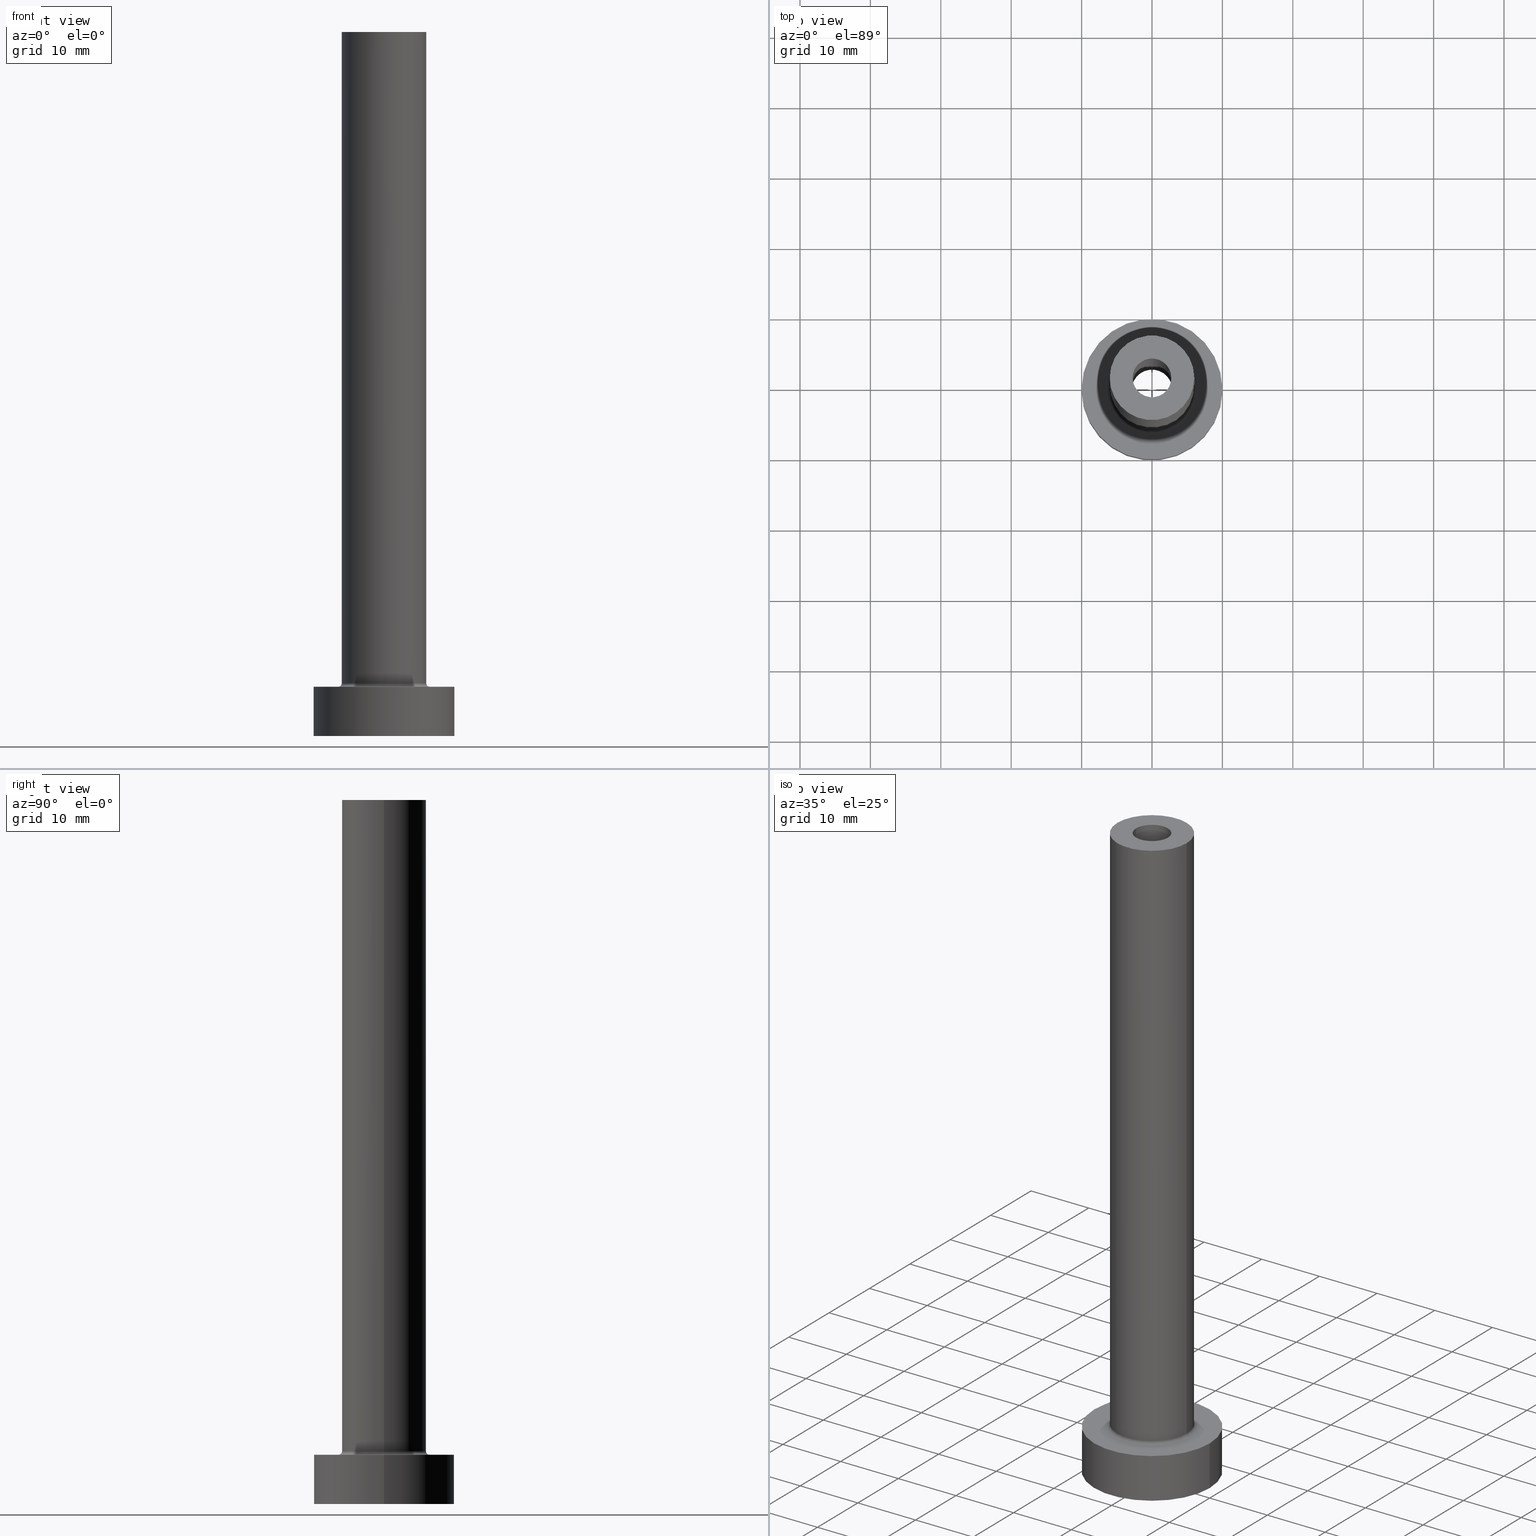
[diagram: canonical four-view strip — front | top / right | iso, engineering-drawing reading convention]
A machine part, canonical four-view strip (front | top / right | iso — engineering-drawing reading convention). The complete STEP part file that produces these views, byte-faithful:
ISO-10303-21;
HEADER;
FILE_DESCRIPTION (( 'STEP AP203' ),
    '1' );
FILE_NAME ('efe8.STEP',
    '2023-02-13T15:56:36',
    ( '' ),
    ( '' ),
    'SwSTEP 2.0',
    'SolidWorks 2019',
    '' );
FILE_SCHEMA (( 'CONFIG_CONTROL_DESIGN' ));
ENDSEC;

DATA;
#1 = CARTESIAN_POINT ( 'NONE',  ( 0.000000000000000000, 0.000000000000000000, 55.00000000000000711 ) ) ;
#2 = PLANE ( 'NONE',  #356 ) ;
#3 = CARTESIAN_POINT ( 'NONE',  ( 0.000000000000000000, 0.000000000000000000, 100.0000000000000000 ) ) ;
#4 = DATE_AND_TIME ( #398, #202 ) ;
#5 = ORIENTED_EDGE ( 'NONE', *, *, #101, .T. ) ;
#6 = ORIENTED_EDGE ( 'NONE', *, *, #301, .T. ) ;
#7 = VECTOR ( 'NONE', #272, 1000.000000000000000 ) ;
#8 = ADVANCED_FACE ( 'NONE', ( #261 ), #229, .F. ) ;
#9 = DIRECTION ( 'NONE',  ( -1.000000000000000000, 0.000000000000000000, 0.000000000000000000 ) ) ;
#10 = CARTESIAN_POINT ( 'NONE',  ( -10.00000000000000000, 0.000000000000000000, 7.000000000000000000 ) ) ;
#11 = VERTEX_POINT ( 'NONE', #50 ) ;
#12 = PRODUCT_DEFINITION_SHAPE ( 'NONE', 'NONE',  #78 ) ;
#13 = CARTESIAN_POINT ( 'NONE',  ( 0.000000000000000000, 0.000000000000000000, 100.0000000000000000 ) ) ;
#14 = EDGE_LOOP ( 'NONE', ( #193, #454 ) ) ;
#15 = ORIENTED_EDGE ( 'NONE', *, *, #167, .T. ) ;
#16 = AXIS2_PLACEMENT_3D ( 'NONE', #223, #195, #120 ) ;
#17 = CC_DESIGN_PERSON_AND_ORGANIZATION_ASSIGNMENT ( #378, #307, ( #379 ) ) ;
#18 = DIRECTION ( 'NONE',  ( -0.000000000000000000, -0.000000000000000000, -1.000000000000000000 ) ) ;
#19 = CARTESIAN_POINT ( 'NONE',  ( 0.000000000000000000, 0.000000000000000000, 7.500000000000007105 ) ) ;
#20 = VERTEX_POINT ( 'NONE', #259 ) ;
#21 = EDGE_CURVE ( 'NONE', #376, #20, #47, .T. ) ;
#22 = PERSON_AND_ORGANIZATION_ROLE ( 'design_supplier' ) ;
#23 = FACE_OUTER_BOUND ( 'NONE', #333, .T. ) ;
#24 = CARTESIAN_POINT ( 'NONE',  ( 0.000000000000000000, 0.000000000000000000, 7.500000000000007105 ) ) ;
#25 = FACE_OUTER_BOUND ( 'NONE', #297, .T. ) ;
#26 = ORIENTED_EDGE ( 'NONE', *, *, #151, .F. ) ;
#27 = CIRCLE ( 'NONE', #248, 2.899999999999999911 ) ;
#28 = AXIS2_PLACEMENT_3D ( 'NONE', #150, #451, #363 ) ;
#29 = DIRECTION ( 'NONE',  ( 0.000000000000000000, 0.000000000000000000, -1.000000000000000000 ) ) ;
#30 = ORIENTED_EDGE ( 'NONE', *, *, #444, .T. ) ;
#31 = CYLINDRICAL_SURFACE ( 'NONE', #143, 2.899999999999999911 ) ;
#32 = VECTOR ( 'NONE', #119, 1000.000000000000000 ) ;
#33 = DIRECTION ( 'NONE',  ( 0.000000000000000000, 0.000000000000000000, -1.000000000000000000 ) ) ;
#34 = CIRCLE ( 'NONE', #317, 0.5000000000000004441 ) ;
#35 = DIRECTION ( 'NONE',  ( 1.224646799147353207E-16, 1.000000000000000000, -0.000000000000000000 ) ) ;
#36 = ADVANCED_FACE ( 'NONE', ( #206 ), #263, .T. ) ;
#37 = CARTESIAN_POINT ( 'NONE',  ( 0.000000000000000000, 0.000000000000000000, 7.000000000000000000 ) ) ;
#38 = EDGE_CURVE ( 'NONE', #408, #48, #104, .T. ) ;
#39 = CIRCLE ( 'NONE', #396, 2.750000000000000000 ) ;
#40 = ORIENTED_EDGE ( 'NONE', *, *, #167, .F. ) ;
#41 = CARTESIAN_POINT ( 'NONE',  ( 6.500000000000000888, 0.000000000000000000, 7.500000000000007105 ) ) ;
#42 = ORIENTED_EDGE ( 'NONE', *, *, #57, .F. ) ;
#43 = LINE ( 'NONE', #118, #180 ) ;
#44 = AXIS2_PLACEMENT_3D ( 'NONE', #218, #355, #246 ) ;
#45 = CC_DESIGN_DATE_AND_TIME_ASSIGNMENT ( #4, #439, ( #78 ) ) ;
#46 = ORIENTED_EDGE ( 'NONE', *, *, #438, .F. ) ;
#47 = CIRCLE ( 'NONE', #249, 10.00000000000000000 ) ;
#48 = VERTEX_POINT ( 'NONE', #337 ) ;
#49 = ORIENTED_EDGE ( 'NONE', *, *, #213, .T. ) ;
#50 = CARTESIAN_POINT ( 'NONE',  ( 6.000000000000000888, 7.347880794884119736E-16, 7.500000000000007105 ) ) ;
#51 = CIRCLE ( 'NONE', #310, 2.750000000000000000 ) ;
#52 = PERSON_AND_ORGANIZATION ( #182, #400 ) ;
#53 = FACE_OUTER_BOUND ( 'NONE', #328, .T. ) ;
#54 = CARTESIAN_POINT ( 'NONE',  ( 0.000000000000000000, 0.000000000000000000, 7.500000000000007105 ) ) ;
#55 = SECURITY_CLASSIFICATION_LEVEL ( 'unclassified' ) ;
#56 = CYLINDRICAL_SURFACE ( 'NONE', #268, 2.750000000000000000 ) ;
#57 = EDGE_CURVE ( 'NONE', #448, #155, #436, .T. ) ;
#58 = PRODUCT_RELATED_PRODUCT_CATEGORY ( 'detail', '', ( #74 ) ) ;
#59 = CARTESIAN_POINT ( 'NONE',  ( -6.500000000000000888, 7.960204194457796463E-16, 7.500000000000007105 ) ) ;
#60 = ORIENTED_EDGE ( 'NONE', *, *, #345, .F. ) ;
#61 = CIRCLE ( 'NONE', #44, 2.750000000000000000 ) ;
#62 = APPROVAL_PERSON_ORGANIZATION ( #327, #226, #135 ) ;
#63 = DIRECTION ( 'NONE',  ( -1.000000000000000000, 0.000000000000000000, 0.000000000000000000 ) ) ;
#64 = DIRECTION ( 'NONE',  ( 0.000000000000000000, 0.000000000000000000, 1.000000000000000000 ) ) ;
#65 = CARTESIAN_POINT ( 'NONE',  ( -2.899999999999999911, 0.000000000000000000, 0.000000000000000000 ) ) ;
#66 = AXIS2_PLACEMENT_3D ( 'NONE', #113, #383, #459 ) ;
#67 = PLANE ( 'NONE',  #279 ) ;
#68 = AXIS2_PLACEMENT_3D ( 'NONE', #240, #312, #92 ) ;
#69 = CIRCLE ( 'NONE', #357, 6.000000000000000888 ) ;
#70 = EDGE_CURVE ( 'NONE', #11, #199, #111, .T. ) ;
#71 = DIRECTION ( 'NONE',  ( -0.000000000000000000, -0.000000000000000000, -1.000000000000000000 ) ) ;
#72 =( NAMED_UNIT ( * ) PLANE_ANGLE_UNIT ( ) SI_UNIT ( $, .RADIAN. ) );
#73 = VERTEX_POINT ( 'NONE', #225 ) ;
#74 = PRODUCT ( 'efe8', 'efe8', '', ( #224 ) ) ;
#75 = ORIENTED_EDGE ( 'NONE', *, *, #375, .F. ) ;
#76 = EDGE_LOOP ( 'NONE', ( #371, #60 ) ) ;
#77 = DIRECTION ( 'NONE',  ( 1.000000000000000000, 0.000000000000000000, 0.000000000000000000 ) ) ;
#78 = PRODUCT_DEFINITION ( 'NEZN�M�', '', #379, #231 ) ;
#79 = CARTESIAN_POINT ( 'NONE',  ( 0.000000000000000000, 0.000000000000000000, 0.000000000000000000 ) ) ;
#80 = ORIENTED_EDGE ( 'NONE', *, *, #354, .F. ) ;
#81 = DIRECTION ( 'NONE',  ( 0.000000000000000000, 0.000000000000000000, 1.000000000000000000 ) ) ;
#82 = EDGE_CURVE ( 'NONE', #185, #376, #43, .T. ) ;
#83 = CIRCLE ( 'NONE', #430, 6.000000000000000888 ) ;
#84 = EDGE_LOOP ( 'NONE', ( #196, #360 ) ) ;
#85 = LINE ( 'NONE', #233, #288 ) ;
#86 = CC_DESIGN_SECURITY_CLASSIFICATION ( #178, ( #379 ) ) ;
#87 = PERSON_AND_ORGANIZATION_ROLE ( 'classification_officer' ) ;
#88 = CARTESIAN_POINT ( 'NONE',  ( 0.000000000000000000, 0.000000000000000000, 7.000000000000000000 ) ) ;
#89 = DIRECTION ( 'NONE',  ( 0.000000000000000000, 0.000000000000000000, 1.000000000000000000 ) ) ;
#90 = DATE_AND_TIME ( #207, #183 ) ;
#91 = DIRECTION ( 'NONE',  ( 1.000000000000000000, 0.000000000000000000, -0.000000000000000000 ) ) ;
#92 = DIRECTION ( 'NONE',  ( 1.000000000000000000, 0.000000000000000000, 0.000000000000000000 ) ) ;
#93 = ADVANCED_BREP_SHAPE_REPRESENTATION ( 'efe8', ( #449, #256 ), #107 ) ;
#94 = FACE_OUTER_BOUND ( 'NONE', #367, .T. ) ;
#95 = DIRECTION ( 'NONE',  ( 1.000000000000000000, 0.000000000000000000, 0.000000000000000000 ) ) ;
#96 = DIRECTION ( 'NONE',  ( -1.000000000000000000, 0.000000000000000000, 0.000000000000000000 ) ) ;
#97 = ORIENTED_EDGE ( 'NONE', *, *, #70, .F. ) ;
#98 = DIRECTION ( 'NONE',  ( 1.000000000000000000, 0.000000000000000000, -0.000000000000000000 ) ) ;
#99 = CYLINDRICAL_SURFACE ( 'NONE', #417, 6.000000000000000888 ) ;
#100 = CIRCLE ( 'NONE', #316, 2.750000000000000000 ) ;
#101 = EDGE_CURVE ( 'NONE', #325, #359, #230, .T. ) ;
#102 = APPROVAL_DATE_TIME ( #253, #295 ) ;
#103 = VERTEX_POINT ( 'NONE', #192 ) ;
#104 = CIRCLE ( 'NONE', #173, 6.500000000000000888 ) ;
#105 = APPROVAL_ROLE ( '' ) ;
#106 = AXIS2_PLACEMENT_3D ( 'NONE', #59, #35, #210 ) ;
#107 =( GEOMETRIC_REPRESENTATION_CONTEXT ( 3 ) GLOBAL_UNCERTAINTY_ASSIGNED_CONTEXT ( ( #161 ) ) GLOBAL_UNIT_ASSIGNED_CONTEXT ( ( #245, #72, #352 ) ) REPRESENTATION_CONTEXT ( 'NONE', 'WORKASPACE' ) );
#108 = ORIENTED_EDGE ( 'NONE', *, *, #453, .T. ) ;
#109 = ORIENTED_EDGE ( 'NONE', *, *, #309, .T. ) ;
#110 = CARTESIAN_POINT ( 'NONE',  ( 0.000000000000000000, 0.000000000000000000, 7.000000000000000000 ) ) ;
#111 = CIRCLE ( 'NONE', #384, 6.000000000000000888 ) ;
#112 = CARTESIAN_POINT ( 'NONE',  ( 0.000000000000000000, 0.000000000000000000, 0.000000000000000000 ) ) ;
#113 = CARTESIAN_POINT ( 'NONE',  ( 0.000000000000000000, 0.000000000000000000, 55.00000000000000711 ) ) ;
#114 = ORIENTED_EDGE ( 'NONE', *, *, #101, .F. ) ;
#115 = DIRECTION ( 'NONE',  ( 1.000000000000000000, 0.000000000000000000, 0.000000000000000000 ) ) ;
#116 = DIRECTION ( 'NONE',  ( 1.000000000000000000, 0.000000000000000000, 0.000000000000000000 ) ) ;
#117 = TOROIDAL_SURFACE ( 'NONE', #399, 6.500000000000000888, 0.5000000000000000000 ) ;
#118 = CARTESIAN_POINT ( 'NONE',  ( 10.00000000000000000, 1.224646799147353256E-15, 7.000000000000000000 ) ) ;
#119 = DIRECTION ( 'NONE',  ( 0.000000000000000000, 0.000000000000000000, -1.000000000000000000 ) ) ;
#120 = DIRECTION ( 'NONE',  ( 1.000000000000000000, 0.000000000000000000, 0.000000000000000000 ) ) ;
#121 = COORDINATED_UNIVERSAL_TIME_OFFSET ( 1, 0, .AHEAD. ) ;
#122 = DIRECTION ( 'NONE',  ( -1.000000000000000000, 0.000000000000000000, 0.000000000000000000 ) ) ;
#123 = AXIS2_PLACEMENT_3D ( 'NONE', #390, #29, #63 ) ;
#124 = CC_DESIGN_APPROVAL ( #244, ( #178 ) ) ;
#125 = CARTESIAN_POINT ( 'NONE',  ( 2.899999999999999911, 3.551475717527323832E-16, 0.000000000000000000 ) ) ;
#126 = CC_DESIGN_PERSON_AND_ORGANIZATION_ASSIGNMENT ( #140, #189, ( #78 ) ) ;
#127 = FACE_BOUND ( 'NONE', #76, .T. ) ;
#128 = CARTESIAN_POINT ( 'NONE',  ( -6.000000000000000888, 0.000000000000000000, 7.500000000000007105 ) ) ;
#129 = DIRECTION ( 'NONE',  ( 0.000000000000000000, 0.000000000000000000, -1.000000000000000000 ) ) ;
#130 = CARTESIAN_POINT ( 'NONE',  ( 0.000000000000000000, 0.000000000000000000, 100.0000000000000000 ) ) ;
#131 = VECTOR ( 'NONE', #236, 1000.000000000000000 ) ;
#132 = LINE ( 'NONE', #315, #131 ) ;
#133 = DIRECTION ( 'NONE',  ( -0.000000000000000000, -0.000000000000000000, -1.000000000000000000 ) ) ;
#134 = EDGE_CURVE ( 'NONE', #344, #11, #85, .T. ) ;
#135 = APPROVAL_ROLE ( '' ) ;
#136 = CC_DESIGN_DATE_AND_TIME_ASSIGNMENT ( #234, #273, ( #178 ) ) ;
#137 = CIRCLE ( 'NONE', #106, 0.5000000000000004441 ) ;
#138 = PERSON_AND_ORGANIZATION ( #182, #400 ) ;
#139 = CARTESIAN_POINT ( 'NONE',  ( 6.500000000000000888, 0.000000000000000000, 7.000000000000002665 ) ) ;
#140 = PERSON_AND_ORGANIZATION ( #182, #400 ) ;
#141 = EDGE_CURVE ( 'NONE', #199, #11, #83, .T. ) ;
#142 = CARTESIAN_POINT ( 'NONE',  ( 2.899999999999999911, 3.551475717527323832E-16, 63.20243866176396352 ) ) ;
#143 = AXIS2_PLACEMENT_3D ( 'NONE', #174, #278, #96 ) ;
#144 = LOCAL_TIME ( 16, 56, 36.00000000000000000, #221 ) ;
#145 = ORIENTED_EDGE ( 'NONE', *, *, #453, .F. ) ;
#146 = EDGE_LOOP ( 'NONE', ( #411, #393, #30, #157 ) ) ;
#147 = CARTESIAN_POINT ( 'NONE',  ( -10.00000000000000000, 0.000000000000000000, 7.000000000000000000 ) ) ;
#148 = VERTEX_POINT ( 'NONE', #296 ) ;
#149 = ORIENTED_EDGE ( 'NONE', *, *, #186, .T. ) ;
#150 = CARTESIAN_POINT ( 'NONE',  ( 0.000000000000000000, 0.000000000000000000, 0.000000000000000000 ) ) ;
#151 = EDGE_CURVE ( 'NONE', #73, #103, #350, .T. ) ;
#152 = CARTESIAN_POINT ( 'NONE',  ( 0.000000000000000000, 0.000000000000000000, 0.000000000000000000 ) ) ;
#153 = ORIENTED_EDGE ( 'NONE', *, *, #70, .T. ) ;
#154 = DIRECTION ( 'NONE',  ( 0.000000000000000000, 0.000000000000000000, 1.000000000000000000 ) ) ;
#155 = VERTEX_POINT ( 'NONE', #65 ) ;
#156 = CIRCLE ( 'NONE', #68, 10.00000000000000000 ) ;
#157 = ORIENTED_EDGE ( 'NONE', *, *, #141, .T. ) ;
#158 = LOCAL_TIME ( 16, 56, 36.00000000000000000, #435 ) ;
#159 = CC_DESIGN_PERSON_AND_ORGANIZATION_ASSIGNMENT ( #303, #22, ( #379 ) ) ;
#160 = ORIENTED_EDGE ( 'NONE', *, *, #438, .T. ) ;
#161 = UNCERTAINTY_MEASURE_WITH_UNIT (LENGTH_MEASURE( 1.000000000000000082E-05 ), #245, 'distance_accuracy_value', 'NONE');
#162 = AXIS2_PLACEMENT_3D ( 'NONE', #54, #298, #116 ) ;
#163 = PERSON_AND_ORGANIZATION ( #182, #400 ) ;
#164 = DIRECTION ( 'NONE',  ( -0.000000000000000000, -0.000000000000000000, -1.000000000000000000 ) ) ;
#165 = DIRECTION ( 'NONE',  ( 0.000000000000000000, 0.000000000000000000, 1.000000000000000000 ) ) ;
#166 = CALENDAR_DATE ( 2023, 13, 2 ) ;
#167 = EDGE_CURVE ( 'NONE', #271, #359, #100, .T. ) ;
#168 = CYLINDRICAL_SURFACE ( 'NONE', #389, 2.750000000000000000 ) ;
#169 = CIRCLE ( 'NONE', #432, 6.000000000000000888 ) ;
#170 = DIRECTION ( 'NONE',  ( 0.000000000000000000, 0.000000000000000000, -1.000000000000000000 ) ) ;
#171 = VERTEX_POINT ( 'NONE', #387 ) ;
#172 = DIRECTION ( 'NONE',  ( 0.000000000000000000, 0.000000000000000000, 1.000000000000000000 ) ) ;
#173 = AXIS2_PLACEMENT_3D ( 'NONE', #407, #340, #198 ) ;
#174 = CARTESIAN_POINT ( 'NONE',  ( 0.000000000000000000, 0.000000000000000000, 63.20243866176396352 ) ) ;
#175 = ADVANCED_FACE ( 'NONE', ( #25 ), #56, .F. ) ;
#176 = EDGE_LOOP ( 'NONE', ( #80, #329, #153, #228 ) ) ;
#177 = DIRECTION ( 'NONE',  ( 1.000000000000000000, 0.000000000000000000, -0.000000000000000000 ) ) ;
#178 = SECURITY_CLASSIFICATION ( '', '', #55 ) ;
#179 = DIRECTION ( 'NONE',  ( 1.000000000000000000, 0.000000000000000000, 0.000000000000000000 ) ) ;
#180 = VECTOR ( 'NONE', #412, 1000.000000000000000 ) ;
#181 = ORIENTED_EDGE ( 'NONE', *, *, #330, .T. ) ;
#182 = PERSON ( 'NEUR�EN�', 'NEUR�EN�', 'NEUR�EN�', ('NEUR�EN�'), ('NEUR�EN�'), ('NEUR�EN�') ) ;
#183 = LOCAL_TIME ( 16, 56, 36.00000000000000000, #121 ) ;
#184 = DIRECTION ( 'NONE',  ( 0.000000000000000000, -1.000000000000000000, 0.000000000000000000 ) ) ;
#185 = VERTEX_POINT ( 'NONE', #426 ) ;
#186 = EDGE_CURVE ( 'NONE', #20, #376, #156, .T. ) ;
#187 = ORIENTED_EDGE ( 'NONE', *, *, #82, .T. ) ;
#188 = FACE_OUTER_BOUND ( 'NONE', #14, .T. ) ;
#189 = PERSON_AND_ORGANIZATION_ROLE ( 'creator' ) ;
#190 = ORIENTED_EDGE ( 'NONE', *, *, #301, .F. ) ;
#191 = CALENDAR_DATE ( 2023, 13, 2 ) ;
#192 = CARTESIAN_POINT ( 'NONE',  ( 2.899999999999999911, 3.551475717527323832E-16, 55.00000000000000711 ) ) ;
#193 = ORIENTED_EDGE ( 'NONE', *, *, #186, .F. ) ;
#194 = EDGE_CURVE ( 'NONE', #199, #48, #137, .T. ) ;
#195 = DIRECTION ( 'NONE',  ( -0.000000000000000000, -0.000000000000000000, -1.000000000000000000 ) ) ;
#196 = ORIENTED_EDGE ( 'NONE', *, *, #38, .T. ) ;
#197 = EDGE_LOOP ( 'NONE', ( #254, #5, #40, #190 ) ) ;
#198 = DIRECTION ( 'NONE',  ( 1.000000000000000000, 0.000000000000000000, 0.000000000000000000 ) ) ;
#199 = VERTEX_POINT ( 'NONE', #128 ) ;
#200 = DIRECTION ( 'NONE',  ( 1.000000000000000000, 0.000000000000000000, 0.000000000000000000 ) ) ;
#201 = CARTESIAN_POINT ( 'NONE',  ( 0.000000000000000000, 0.000000000000000000, 100.0000000000000000 ) ) ;
#202 = LOCAL_TIME ( 16, 56, 36.00000000000000000, #290 ) ;
#203 = VECTOR ( 'NONE', #455, 1000.000000000000000 ) ;
#204 = DATE_AND_TIME ( #166, #144 ) ;
#205 = CARTESIAN_POINT ( 'NONE',  ( 2.750000000000000000, 3.367778697655220519E-16, 55.00000000000000711 ) ) ;
#206 = FACE_OUTER_BOUND ( 'NONE', #176, .T. ) ;
#207 = CALENDAR_DATE ( 2023, 13, 2 ) ;
#208 = DIRECTION ( 'NONE',  ( 1.000000000000000000, 0.000000000000000000, 0.000000000000000000 ) ) ;
#209 = DIRECTION ( 'NONE',  ( 1.000000000000000000, 0.000000000000000000, 0.000000000000000000 ) ) ;
#210 = DIRECTION ( 'NONE',  ( -1.000000000000000000, 1.224646799147351482E-16, 0.000000000000000000 ) ) ;
#211 = AXIS2_PLACEMENT_3D ( 'NONE', #37, #71, #9 ) ;
#212 = VECTOR ( 'NONE', #222, 1000.000000000000000 ) ;
#213 = EDGE_CURVE ( 'NONE', #395, #185, #262, .T. ) ;
#214 = FACE_OUTER_BOUND ( 'NONE', #251, .T. ) ;
#215 = EDGE_LOOP ( 'NONE', ( #26, #348 ) ) ;
#216 = CARTESIAN_POINT ( 'NONE',  ( 0.000000000000000000, 0.000000000000000000, 7.000000000000000000 ) ) ;
#217 = CARTESIAN_POINT ( 'NONE',  ( -2.750000000000000000, 0.000000000000000000, 55.00000000000000711 ) ) ;
#218 = CARTESIAN_POINT ( 'NONE',  ( 0.000000000000000000, 0.000000000000000000, 55.00000000000000711 ) ) ;
#219 = EDGE_CURVE ( 'NONE', #103, #73, #27, .T. ) ;
#220 = APPLICATION_PROTOCOL_DEFINITION ( 'international standard', 'config_control_design', 1994, #402 ) ;
#221 = COORDINATED_UNIVERSAL_TIME_OFFSET ( 1, 0, .AHEAD. ) ;
#222 = DIRECTION ( 'NONE',  ( -0.000000000000000000, -0.000000000000000000, -1.000000000000000000 ) ) ;
#223 = CARTESIAN_POINT ( 'NONE',  ( 0.000000000000000000, 0.000000000000000000, 0.000000000000000000 ) ) ;
#224 = MECHANICAL_CONTEXT ( 'NONE', #402, 'mechanical' ) ;
#225 = CARTESIAN_POINT ( 'NONE',  ( -2.899999999999999911, 0.000000000000000000, 55.00000000000000711 ) ) ;
#226 = APPROVAL ( #250, 'NEUR�EN�' ) ;
#227 = DIRECTION ( 'NONE',  ( -0.000000000000000000, -0.000000000000000000, -1.000000000000000000 ) ) ;
#228 = ORIENTED_EDGE ( 'NONE', *, *, #444, .F. ) ;
#229 = TOROIDAL_SURFACE ( 'NONE', #162, 6.500000000000000888, 0.5000000000000000000 ) ;
#230 = LINE ( 'NONE', #302, #32 ) ;
#231 = DESIGN_CONTEXT ( 'detailed design', #429, 'design' ) ;
#232 = ADVANCED_FACE ( 'NONE', ( #313 ), #168, .F. ) ;
#233 = CARTESIAN_POINT ( 'NONE',  ( 6.000000000000000888, 7.347880794884119736E-16, 100.0000000000000000 ) ) ;
#234 = DATE_AND_TIME ( #420, #434 ) ;
#235 = DIRECTION ( 'NONE',  ( 1.000000000000000000, 0.000000000000000000, 0.000000000000000000 ) ) ;
#236 = DIRECTION ( 'NONE',  ( 0.000000000000000000, 0.000000000000000000, -1.000000000000000000 ) ) ;
#237 = SHAPE_DEFINITION_REPRESENTATION ( #12, #93 ) ;
#238 = DIRECTION ( 'NONE',  ( 0.000000000000000000, 0.000000000000000000, 1.000000000000000000 ) ) ;
#239 = ADVANCED_FACE ( 'NONE', ( #127, #275 ), #2, .T. ) ;
#240 = CARTESIAN_POINT ( 'NONE',  ( 0.000000000000000000, 0.000000000000000000, 0.000000000000000000 ) ) ;
#241 = AXIS2_PLACEMENT_3D ( 'NONE', #216, #172, #91 ) ;
#242 = CARTESIAN_POINT ( 'NONE',  ( 0.000000000000000000, 0.000000000000000000, 7.500000000000007105 ) ) ;
#243 = ORIENTED_EDGE ( 'NONE', *, *, #213, .F. ) ;
#244 = APPROVAL ( #382, 'NEUR�EN�' ) ;
#245 =( LENGTH_UNIT ( ) NAMED_UNIT ( * ) SI_UNIT ( .MILLI., .METRE. ) );
#246 = DIRECTION ( 'NONE',  ( 1.000000000000000000, 0.000000000000000000, 0.000000000000000000 ) ) ;
#247 = ADVANCED_FACE ( 'NONE', ( #347 ), #117, .F. ) ;
#248 = AXIS2_PLACEMENT_3D ( 'NONE', #1, #349, #208 ) ;
#249 = AXIS2_PLACEMENT_3D ( 'NONE', #152, #300, #77 ) ;
#250 = APPROVAL_STATUS ( 'not_yet_approved' ) ;
#251 = EDGE_LOOP ( 'NONE', ( #388, #160, #437, #460 ) ) ;
#252 = ADVANCED_FACE ( 'NONE', ( #94 ), #394, .F. ) ;
#253 = DATE_AND_TIME ( #191, #158 ) ;
#254 = ORIENTED_EDGE ( 'NONE', *, *, #336, .T. ) ;
#255 = CARTESIAN_POINT ( 'NONE',  ( 10.00000000000000000, 1.224646799147353256E-15, 0.000000000000000000 ) ) ;
#256 = AXIS2_PLACEMENT_3D ( 'NONE', #112, #154, #200 ) ;
#257 = EDGE_LOOP ( 'NONE', ( #405, #97, #108, #447 ) ) ;
#258 = DIRECTION ( 'NONE',  ( -0.000000000000000000, -0.000000000000000000, -1.000000000000000000 ) ) ;
#259 = CARTESIAN_POINT ( 'NONE',  ( -10.00000000000000000, 0.000000000000000000, 0.000000000000000000 ) ) ;
#260 = ORIENTED_EDGE ( 'NONE', *, *, #141, .F. ) ;
#261 = FACE_OUTER_BOUND ( 'NONE', #440, .T. ) ;
#262 = CIRCLE ( 'NONE', #457, 10.00000000000000000 ) ;
#263 = CYLINDRICAL_SURFACE ( 'NONE', #404, 6.000000000000000888 ) ;
#264 = ADVANCED_FACE ( 'NONE', ( #214 ), #31, .F. ) ;
#265 = DIRECTION ( 'NONE',  ( 1.000000000000000000, 0.000000000000000000, 0.000000000000000000 ) ) ;
#266 = LINE ( 'NONE', #142, #7 ) ;
#267 = FACE_OUTER_BOUND ( 'NONE', #291, .T. ) ;
#268 = AXIS2_PLACEMENT_3D ( 'NONE', #130, #170, #122 ) ;
#269 = FACE_BOUND ( 'NONE', #361, .T. ) ;
#270 = CIRCLE ( 'NONE', #16, 2.899999999999999911 ) ;
#271 = VERTEX_POINT ( 'NONE', #217 ) ;
#272 = DIRECTION ( 'NONE',  ( 0.000000000000000000, 0.000000000000000000, -1.000000000000000000 ) ) ;
#273 = DATE_TIME_ROLE ( 'classification_date' ) ;
#274 = PLANE ( 'NONE',  #241 ) ;
#275 = FACE_OUTER_BOUND ( 'NONE', #374, .T. ) ;
#276 = CARTESIAN_POINT ( 'NONE',  ( 0.000000000000000000, 0.000000000000000000, 7.000000000000000000 ) ) ;
#277 = DIRECTION ( 'NONE',  ( 0.000000000000000000, 0.000000000000000000, 1.000000000000000000 ) ) ;
#278 = DIRECTION ( 'NONE',  ( 0.000000000000000000, 0.000000000000000000, -1.000000000000000000 ) ) ;
#279 = AXIS2_PLACEMENT_3D ( 'NONE', #419, #89, #177 ) ;
#280 = APPROVAL_PERSON_ORGANIZATION ( #163, #244, #452 ) ;
#281 = DIRECTION ( 'NONE',  ( -1.000000000000000000, 0.000000000000000000, 0.000000000000000000 ) ) ;
#282 = CYLINDRICAL_SURFACE ( 'NONE', #211, 10.00000000000000000 ) ;
#283 = CC_DESIGN_PERSON_AND_ORGANIZATION_ASSIGNMENT ( #397, #322, ( #74 ) ) ;
#284 = FACE_OUTER_BOUND ( 'NONE', #146, .T. ) ;
#285 = AXIS2_PLACEMENT_3D ( 'NONE', #88, #164, #342 ) ;
#286 = APPROVAL_STATUS ( 'not_yet_approved' ) ;
#287 = ADVANCED_FACE ( 'NONE', ( #269, #353 ), #67, .F. ) ;
#288 = VECTOR ( 'NONE', #18, 1000.000000000000000 ) ;
#289 = PLANE ( 'NONE',  #28 ) ;
#290 = COORDINATED_UNIVERSAL_TIME_OFFSET ( 1, 0, .AHEAD. ) ;
#291 = EDGE_LOOP ( 'NONE', ( #49, #293 ) ) ;
#292 = ORIENTED_EDGE ( 'NONE', *, *, #461, .T. ) ;
#293 = ORIENTED_EDGE ( 'NONE', *, *, #375, .T. ) ;
#294 = LINE ( 'NONE', #10, #212 ) ;
#295 = APPROVAL ( #286, 'NEUR�EN�' ) ;
#296 = CARTESIAN_POINT ( 'NONE',  ( -2.750000000000000000, 0.000000000000000000, 100.0000000000000000 ) ) ;
#297 = EDGE_LOOP ( 'NONE', ( #114, #335, #6, #381 ) ) ;
#298 = DIRECTION ( 'NONE',  ( 0.000000000000000000, 0.000000000000000000, 1.000000000000000000 ) ) ;
#299 = CIRCLE ( 'NONE', #362, 10.00000000000000000 ) ;
#300 = DIRECTION ( 'NONE',  ( 0.000000000000000000, 0.000000000000000000, 1.000000000000000000 ) ) ;
#301 = EDGE_CURVE ( 'NONE', #148, #271, #132, .T. ) ;
#302 = CARTESIAN_POINT ( 'NONE',  ( 2.750000000000000000, 3.367778697655220519E-16, 100.0000000000000000 ) ) ;
#303 = PERSON_AND_ORGANIZATION ( #182, #400 ) ;
#304 = CYLINDRICAL_SURFACE ( 'NONE', #285, 10.00000000000000000 ) ;
#305 = DIRECTION ( 'NONE',  ( 1.000000000000000000, 0.000000000000000000, 0.000000000000000000 ) ) ;
#306 = CARTESIAN_POINT ( 'NONE',  ( -6.000000000000000888, 0.000000000000000000, 100.0000000000000000 ) ) ;
#307 = PERSON_AND_ORGANIZATION_ROLE ( 'creator' ) ;
#308 = CARTESIAN_POINT ( 'NONE',  ( -2.899999999999999911, 0.000000000000000000, 63.20243866176396352 ) ) ;
#309 = EDGE_CURVE ( 'NONE', #359, #271, #61, .T. ) ;
#310 = AXIS2_PLACEMENT_3D ( 'NONE', #391, #64, #235 ) ;
#311 = DIRECTION ( 'NONE',  ( 0.000000000000000000, 0.000000000000000000, 1.000000000000000000 ) ) ;
#312 = DIRECTION ( 'NONE',  ( 0.000000000000000000, 0.000000000000000000, 1.000000000000000000 ) ) ;
#313 = FACE_OUTER_BOUND ( 'NONE', #197, .T. ) ;
#314 = DIRECTION ( 'NONE',  ( 1.000000000000000000, 0.000000000000000000, 0.000000000000000000 ) ) ;
#315 = CARTESIAN_POINT ( 'NONE',  ( -2.750000000000000000, 0.000000000000000000, 100.0000000000000000 ) ) ;
#316 = AXIS2_PLACEMENT_3D ( 'NONE', #319, #392, #421 ) ;
#317 = AXIS2_PLACEMENT_3D ( 'NONE', #41, #184, #326 ) ;
#318 = ADVANCED_FACE ( 'NONE', ( #284 ), #99, .T. ) ;
#319 = CARTESIAN_POINT ( 'NONE',  ( 0.000000000000000000, 0.000000000000000000, 55.00000000000000711 ) ) ;
#320 = ORIENTED_EDGE ( 'NONE', *, *, #354, .T. ) ;
#321 = ADVANCED_FACE ( 'NONE', ( #346, #267 ), #274, .T. ) ;
#322 = PERSON_AND_ORGANIZATION_ROLE ( 'design_owner' ) ;
#323 = ORIENTED_EDGE ( 'NONE', *, *, #409, .T. ) ;
#324 = FACE_BOUND ( 'NONE', #364, .T. ) ;
#325 = VERTEX_POINT ( 'NONE', #380 ) ;
#326 = DIRECTION ( 'NONE',  ( 0.000000000000000000, 0.000000000000000000, -1.000000000000000000 ) ) ;
#327 = PERSON_AND_ORGANIZATION ( #182, #400 ) ;
#328 = EDGE_LOOP ( 'NONE', ( #445, #243, #334, #149 ) ) ;
#329 = ORIENTED_EDGE ( 'NONE', *, *, #134, .T. ) ;
#330 = EDGE_CURVE ( 'NONE', #73, #155, #413, .T. ) ;
#331 = CIRCLE ( 'NONE', #372, 6.500000000000000888 ) ;
#332 = DIRECTION ( 'NONE',  ( -0.000000000000000000, -0.000000000000000000, -1.000000000000000000 ) ) ;
#333 = EDGE_LOOP ( 'NONE', ( #75, #187, #415, #406 ) ) ;
#334 = ORIENTED_EDGE ( 'NONE', *, *, #401, .T. ) ;
#335 = ORIENTED_EDGE ( 'NONE', *, *, #345, .T. ) ;
#336 = EDGE_CURVE ( 'NONE', #148, #325, #39, .T. ) ;
#337 = CARTESIAN_POINT ( 'NONE',  ( -6.500000000000000888, 7.960204194457796463E-16, 7.000000000000002665 ) ) ;
#338 = APPROVAL_DATE_TIME ( #204, #226 ) ;
#339 = DIRECTION ( 'NONE',  ( 0.000000000000000000, 0.000000000000000000, 1.000000000000000000 ) ) ;
#340 = DIRECTION ( 'NONE',  ( -0.000000000000000000, -0.000000000000000000, -1.000000000000000000 ) ) ;
#341 = AXIS2_PLACEMENT_3D ( 'NONE', #79, #332, #414 ) ;
#342 = DIRECTION ( 'NONE',  ( -1.000000000000000000, 0.000000000000000000, 0.000000000000000000 ) ) ;
#343 = DIRECTION ( 'NONE',  ( 0.000000000000000000, 0.000000000000000000, 1.000000000000000000 ) ) ;
#344 = VERTEX_POINT ( 'NONE', #425 ) ;
#345 = EDGE_CURVE ( 'NONE', #325, #148, #51, .T. ) ;
#346 = FACE_BOUND ( 'NONE', #84, .T. ) ;
#347 = FACE_OUTER_BOUND ( 'NONE', #257, .T. ) ;
#348 = ORIENTED_EDGE ( 'NONE', *, *, #219, .F. ) ;
#349 = DIRECTION ( 'NONE',  ( 0.000000000000000000, 0.000000000000000000, 1.000000000000000000 ) ) ;
#350 = CIRCLE ( 'NONE', #66, 2.899999999999999911 ) ;
#351 = CARTESIAN_POINT ( 'NONE',  ( 0.000000000000000000, 0.000000000000000000, 100.0000000000000000 ) ) ;
#352 =( NAMED_UNIT ( * ) SI_UNIT ( $, .STERADIAN. ) SOLID_ANGLE_UNIT ( ) );
#353 = FACE_OUTER_BOUND ( 'NONE', #215, .T. ) ;
#354 = EDGE_CURVE ( 'NONE', #344, #171, #169, .T. ) ;
#355 = DIRECTION ( 'NONE',  ( 0.000000000000000000, 0.000000000000000000, 1.000000000000000000 ) ) ;
#356 = AXIS2_PLACEMENT_3D ( 'NONE', #428, #238, #98 ) ;
#357 = AXIS2_PLACEMENT_3D ( 'NONE', #13, #311, #209 ) ;
#358 = ADVANCED_FACE ( 'NONE', ( #53 ), #304, .T. ) ;
#359 = VERTEX_POINT ( 'NONE', #205 ) ;
#360 = ORIENTED_EDGE ( 'NONE', *, *, #385, .T. ) ;
#361 = EDGE_LOOP ( 'NONE', ( #15, #109 ) ) ;
#362 = AXIS2_PLACEMENT_3D ( 'NONE', #442, #81, #115 ) ;
#363 = DIRECTION ( 'NONE',  ( 1.000000000000000000, 0.000000000000000000, -0.000000000000000000 ) ) ;
#364 = EDGE_LOOP ( 'NONE', ( #443, #42 ) ) ;
#365 = CLOSED_SHELL ( 'NONE', ( #232, #264, #8, #36, #366, #358, #321, #433, #318, #239, #247, #252, #287, #175 ) ) ;
#366 = ADVANCED_FACE ( 'NONE', ( #23 ), #282, .T. ) ;
#367 = EDGE_LOOP ( 'NONE', ( #46, #377, #181, #323 ) ) ;
#368 = DIRECTION ( 'NONE',  ( 1.000000000000000000, 0.000000000000000000, 0.000000000000000000 ) ) ;
#369 = APPLICATION_PROTOCOL_DEFINITION ( 'international standard', 'config_control_design', 1994, #429 ) ;
#370 = DIRECTION ( 'NONE',  ( -1.000000000000000000, 0.000000000000000000, 0.000000000000000000 ) ) ;
#371 = ORIENTED_EDGE ( 'NONE', *, *, #336, .F. ) ;
#372 = AXIS2_PLACEMENT_3D ( 'NONE', #110, #258, #368 ) ;
#373 = DIRECTION ( 'NONE',  ( 1.000000000000000000, 0.000000000000000000, 0.000000000000000000 ) ) ;
#374 = EDGE_LOOP ( 'NONE', ( #292, #320 ) ) ;
#375 = EDGE_CURVE ( 'NONE', #185, #395, #299, .T. ) ;
#376 = VERTEX_POINT ( 'NONE', #255 ) ;
#377 = ORIENTED_EDGE ( 'NONE', *, *, #219, .T. ) ;
#378 = PERSON_AND_ORGANIZATION ( #182, #400 ) ;
#379 = PRODUCT_DEFINITION_FORMATION_WITH_SPECIFIED_SOURCE ( 'LIBOVOLN�', '', #74, .NOT_KNOWN. ) ;
#380 = CARTESIAN_POINT ( 'NONE',  ( 2.750000000000000000, 3.367778697655220519E-16, 100.0000000000000000 ) ) ;
#381 = ORIENTED_EDGE ( 'NONE', *, *, #309, .F. ) ;
#382 = APPROVAL_STATUS ( 'not_yet_approved' ) ;
#383 = DIRECTION ( 'NONE',  ( 0.000000000000000000, 0.000000000000000000, 1.000000000000000000 ) ) ;
#384 = AXIS2_PLACEMENT_3D ( 'NONE', #19, #450, #373 ) ;
#385 = EDGE_CURVE ( 'NONE', #48, #408, #331, .T. ) ;
#386 = APPROVAL_DATE_TIME ( #90, #244 ) ;
#387 = CARTESIAN_POINT ( 'NONE',  ( -6.000000000000000888, 0.000000000000000000, 100.0000000000000000 ) ) ;
#388 = ORIENTED_EDGE ( 'NONE', *, *, #151, .T. ) ;
#389 = AXIS2_PLACEMENT_3D ( 'NONE', #458, #33, #281 ) ;
#390 = CARTESIAN_POINT ( 'NONE',  ( 0.000000000000000000, 0.000000000000000000, 63.20243866176396352 ) ) ;
#391 = CARTESIAN_POINT ( 'NONE',  ( 0.000000000000000000, 0.000000000000000000, 100.0000000000000000 ) ) ;
#392 = DIRECTION ( 'NONE',  ( 0.000000000000000000, 0.000000000000000000, 1.000000000000000000 ) ) ;
#393 = ORIENTED_EDGE ( 'NONE', *, *, #461, .F. ) ;
#394 = CYLINDRICAL_SURFACE ( 'NONE', #123, 2.899999999999999911 ) ;
#395 = VERTEX_POINT ( 'NONE', #147 ) ;
#396 = AXIS2_PLACEMENT_3D ( 'NONE', #418, #277, #95 ) ;
#397 = PERSON_AND_ORGANIZATION ( #182, #400 ) ;
#398 = CALENDAR_DATE ( 2023, 13, 2 ) ;
#399 = AXIS2_PLACEMENT_3D ( 'NONE', #242, #423, #314 ) ;
#400 = ORGANIZATION ( 'NEUR�EN�', 'NEUR�EN�', '' ) ;
#401 = EDGE_CURVE ( 'NONE', #395, #20, #294, .T. ) ;
#402 = APPLICATION_CONTEXT ( 'configuration controlled 3d designs of mechanical parts and assemblies' ) ;
#403 = ORIENTED_EDGE ( 'NONE', *, *, #194, .T. ) ;
#404 = AXIS2_PLACEMENT_3D ( 'NONE', #201, #227, #370 ) ;
#405 = ORIENTED_EDGE ( 'NONE', *, *, #194, .F. ) ;
#406 = ORIENTED_EDGE ( 'NONE', *, *, #401, .F. ) ;
#407 = CARTESIAN_POINT ( 'NONE',  ( 0.000000000000000000, 0.000000000000000000, 7.000000000000000000 ) ) ;
#408 = VERTEX_POINT ( 'NONE', #139 ) ;
#409 = EDGE_CURVE ( 'NONE', #155, #448, #270, .T. ) ;
#410 = VECTOR ( 'NONE', #129, 1000.000000000000000 ) ;
#411 = ORIENTED_EDGE ( 'NONE', *, *, #134, .F. ) ;
#412 = DIRECTION ( 'NONE',  ( -0.000000000000000000, -0.000000000000000000, -1.000000000000000000 ) ) ;
#413 = LINE ( 'NONE', #308, #410 ) ;
#414 = DIRECTION ( 'NONE',  ( 1.000000000000000000, 0.000000000000000000, 0.000000000000000000 ) ) ;
#415 = ORIENTED_EDGE ( 'NONE', *, *, #21, .T. ) ;
#416 = LINE ( 'NONE', #306, #203 ) ;
#417 = AXIS2_PLACEMENT_3D ( 'NONE', #3, #133, #431 ) ;
#418 = CARTESIAN_POINT ( 'NONE',  ( 0.000000000000000000, 0.000000000000000000, 100.0000000000000000 ) ) ;
#419 = CARTESIAN_POINT ( 'NONE',  ( 0.000000000000000000, 0.000000000000000000, 55.00000000000000711 ) ) ;
#420 = CALENDAR_DATE ( 2023, 13, 2 ) ;
#421 = DIRECTION ( 'NONE',  ( 1.000000000000000000, 0.000000000000000000, 0.000000000000000000 ) ) ;
#422 = ORIENTED_EDGE ( 'NONE', *, *, #38, .F. ) ;
#423 = DIRECTION ( 'NONE',  ( 0.000000000000000000, 0.000000000000000000, 1.000000000000000000 ) ) ;
#424 = CC_DESIGN_PERSON_AND_ORGANIZATION_ASSIGNMENT ( #52, #87, ( #178 ) ) ;
#425 = CARTESIAN_POINT ( 'NONE',  ( 6.000000000000000888, 7.347880794884119736E-16, 100.0000000000000000 ) ) ;
#426 = CARTESIAN_POINT ( 'NONE',  ( 10.00000000000000000, 1.224646799147353256E-15, 7.000000000000000000 ) ) ;
#427 = CC_DESIGN_APPROVAL ( #226, ( #379 ) ) ;
#428 = CARTESIAN_POINT ( 'NONE',  ( 0.000000000000000000, 0.000000000000000000, 100.0000000000000000 ) ) ;
#429 = APPLICATION_CONTEXT ( 'configuration controlled 3d designs of mechanical parts and assemblies' ) ;
#430 = AXIS2_PLACEMENT_3D ( 'NONE', #24, #165, #305 ) ;
#431 = DIRECTION ( 'NONE',  ( -1.000000000000000000, 0.000000000000000000, 0.000000000000000000 ) ) ;
#432 = AXIS2_PLACEMENT_3D ( 'NONE', #351, #339, #265 ) ;
#433 = ADVANCED_FACE ( 'NONE', ( #324, #188 ), #289, .F. ) ;
#434 = LOCAL_TIME ( 16, 56, 36.00000000000000000, #456 ) ;
#435 = COORDINATED_UNIVERSAL_TIME_OFFSET ( 1, 0, .AHEAD. ) ;
#436 = CIRCLE ( 'NONE', #341, 2.899999999999999911 ) ;
#437 = ORIENTED_EDGE ( 'NONE', *, *, #57, .T. ) ;
#438 = EDGE_CURVE ( 'NONE', #103, #448, #266, .T. ) ;
#439 = DATE_TIME_ROLE ( 'creation_date' ) ;
#440 = EDGE_LOOP ( 'NONE', ( #260, #403, #422, #145 ) ) ;
#441 = CC_DESIGN_APPROVAL ( #295, ( #78 ) ) ;
#442 = CARTESIAN_POINT ( 'NONE',  ( 0.000000000000000000, 0.000000000000000000, 7.000000000000000000 ) ) ;
#443 = ORIENTED_EDGE ( 'NONE', *, *, #409, .F. ) ;
#444 = EDGE_CURVE ( 'NONE', #171, #199, #416, .T. ) ;
#445 = ORIENTED_EDGE ( 'NONE', *, *, #82, .F. ) ;
#446 = APPROVAL_PERSON_ORGANIZATION ( #138, #295, #105 ) ;
#447 = ORIENTED_EDGE ( 'NONE', *, *, #385, .F. ) ;
#448 = VERTEX_POINT ( 'NONE', #125 ) ;
#449 = MANIFOLD_SOLID_BREP ( 'Odebrat vysunut�m4', #365 ) ;
#450 = DIRECTION ( 'NONE',  ( 0.000000000000000000, 0.000000000000000000, 1.000000000000000000 ) ) ;
#451 = DIRECTION ( 'NONE',  ( 0.000000000000000000, 0.000000000000000000, 1.000000000000000000 ) ) ;
#452 = APPROVAL_ROLE ( '' ) ;
#453 = EDGE_CURVE ( 'NONE', #11, #408, #34, .T. ) ;
#454 = ORIENTED_EDGE ( 'NONE', *, *, #21, .F. ) ;
#455 = DIRECTION ( 'NONE',  ( -0.000000000000000000, -0.000000000000000000, -1.000000000000000000 ) ) ;
#456 = COORDINATED_UNIVERSAL_TIME_OFFSET ( 1, 0, .AHEAD. ) ;
#457 = AXIS2_PLACEMENT_3D ( 'NONE', #276, #343, #179 ) ;
#458 = CARTESIAN_POINT ( 'NONE',  ( 0.000000000000000000, 0.000000000000000000, 100.0000000000000000 ) ) ;
#459 = DIRECTION ( 'NONE',  ( 1.000000000000000000, 0.000000000000000000, 0.000000000000000000 ) ) ;
#460 = ORIENTED_EDGE ( 'NONE', *, *, #330, .F. ) ;
#461 = EDGE_CURVE ( 'NONE', #171, #344, #69, .T. ) ;
ENDSEC;
END-ISO-10303-21;
